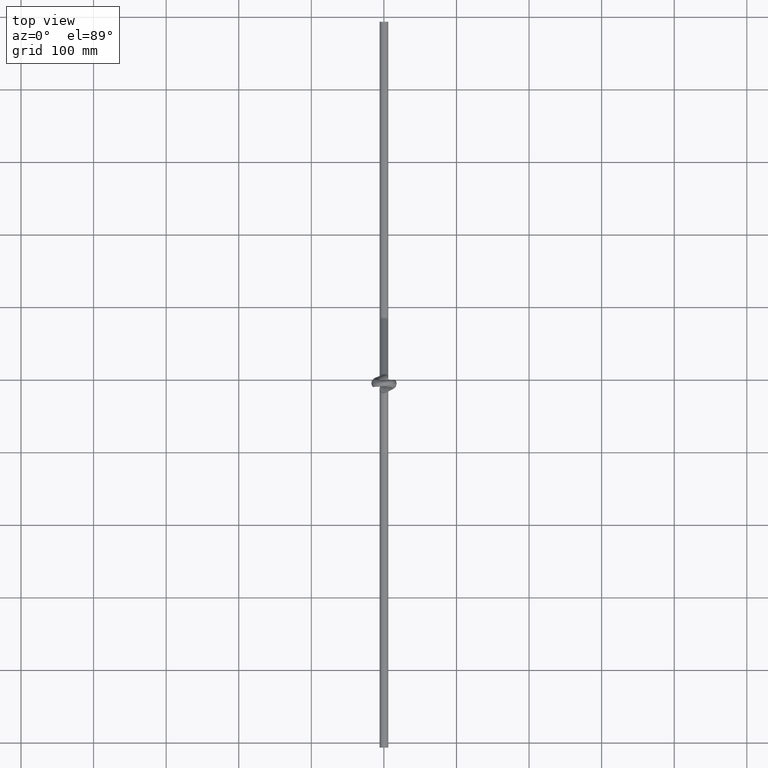
[diagram: clean part render]
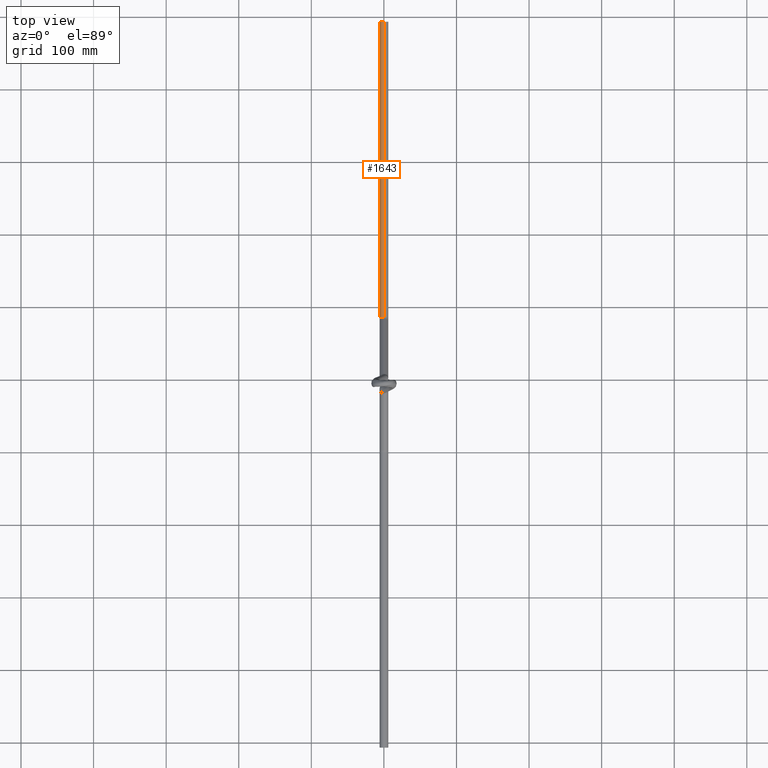
[diagram: same view with one face highlighted and labeled with its STEP entity id]
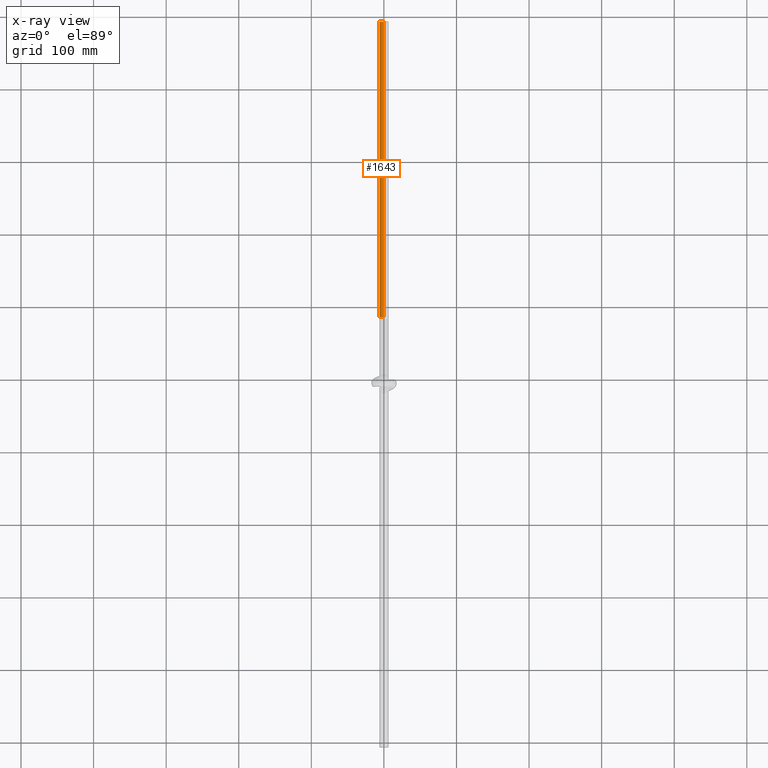
[diagram: x-ray of the same camera — body ghosted, the highlighted face saturated]
A machine part, top view. The second image highlights one B-rep face of the part: STEP entity #1643.
The next image is the same camera in x-ray: the body ghosted, the highlighted face saturated — about 0% of this face is hidden behind the body in this view.
In plain terms, the highlighted cylindrical surface (edge-blend (fillet) strip) has radius 6 mm, axis along (-0, 1, 0).
Its self-contained STEP definition (entity closure, byte-faithful):
#175 = VECTOR ( 'NONE', #689, 1000.000000000000000 ) ;
#689 = DIRECTION ( 'NONE',  ( -0.0000000000000000000, 1.000000000000000000, 1.364650601035499000E-016 ) ) ;
#823 = CARTESIAN_POINT ( 'NONE',  ( 7.347880794884167100E-016, 86.72077615225553900, -77.25000000000007100 ) ) ;
#854 = CARTESIAN_POINT ( 'NONE',  ( 0.0000000000000000000, 493.5000000000000000, -65.25000000000000000 ) ) ;
#1015 = CYLINDRICAL_SURFACE ( 'NONE', #5540, 6.000000000000005300 ) ;
#1219 = LINE ( 'NONE', #3043, #4344 ) ;
#1460 = VERTEX_POINT ( 'NONE', #3354 ) ;
#1643 = ADVANCED_FACE ( 'NONE', ( #7450 ), #1015, .T. ) ;
#2607 = VERTEX_POINT ( 'NONE', #823 ) ;
#2627 = CARTESIAN_POINT ( 'NONE',  ( 0.0000000000000000000, 493.5000000000000000, -71.25000000000001400 ) ) ;
#2630 = CIRCLE ( 'NONE', #7392, 6.000000000000005300 ) ;
#2635 = ORIENTED_EDGE ( 'NONE', *, *, #5714, .F. ) ;
#3043 = CARTESIAN_POINT ( 'NONE',  ( 7.347880794884129600E-016, 86.72077615225553900, -77.25000000000007100 ) ) ;
#3069 = ORIENTED_EDGE ( 'NONE', *, *, #7495, .T. ) ;
#3262 = DIRECTION ( 'NONE',  ( 0.0000000000000000000, 0.0000000000000000000, 1.000000000000000000 ) ) ;
#3354 = CARTESIAN_POINT ( 'NONE',  ( 0.0000000000000000000, 86.72077615225553900, -65.25000000000005700 ) ) ;
#3623 = AXIS2_PLACEMENT_3D ( 'NONE', #7187, #3627, #7743 ) ;
#3627 = DIRECTION ( 'NONE',  ( 0.0000000000000000000, 1.000000000000000000, 0.0000000000000000000 ) ) ;
#3717 = VERTEX_POINT ( 'NONE', #6648 ) ;
#3809 = CARTESIAN_POINT ( 'NONE',  ( 0.0000000000000000000, 86.72077615225553900, -65.25000000000005700 ) ) ;
#4292 = EDGE_CURVE ( 'NONE', #2607, #3717, #1219, .T. ) ;
#4344 = VECTOR ( 'NONE', #6108, 1000.000000000000000 ) ;
#4832 = ORIENTED_EDGE ( 'NONE', *, *, #7842, .T. ) ;
#5540 = AXIS2_PLACEMENT_3D ( 'NONE', #7585, #7568, #7556 ) ;
#5714 = EDGE_CURVE ( 'NONE', #3717, #5846, #2630, .T. ) ;
#5846 = VERTEX_POINT ( 'NONE', #854 ) ;
#6108 = DIRECTION ( 'NONE',  ( -0.0000000000000000000, 1.000000000000000000, 1.364650601035499000E-016 ) ) ;
#6396 = ORIENTED_EDGE ( 'NONE', *, *, #4292, .F. ) ;
#6648 = CARTESIAN_POINT ( 'NONE',  ( 7.347880794884134500E-016, 493.5000000000000000, -77.25000000000001400 ) ) ;
#6734 = LINE ( 'NONE', #3809, #175 ) ;
#6884 = DIRECTION ( 'NONE',  ( 0.0000000000000000000, 1.000000000000000000, 0.0000000000000000000 ) ) ;
#7076 = EDGE_LOOP ( 'NONE', ( #6396, #4832, #3069, #2635 ) ) ;
#7187 = CARTESIAN_POINT ( 'NONE',  ( 0.0000000000000000000, 86.72077615225553900, -71.25000000000005700 ) ) ;
#7303 = CIRCLE ( 'NONE', #3623, 6.000000000000005300 ) ;
#7392 = AXIS2_PLACEMENT_3D ( 'NONE', #2627, #6884, #3262 ) ;
#7450 = FACE_OUTER_BOUND ( 'NONE', #7076, .T. ) ;
#7495 = EDGE_CURVE ( 'NONE', #1460, #5846, #6734, .T. ) ;
#7556 = DIRECTION ( 'NONE',  ( 0.0000000000000000000, 0.0000000000000000000, 1.000000000000000000 ) ) ;
#7568 = DIRECTION ( 'NONE',  ( -0.0000000000000000000, 1.000000000000000000, 1.364650601035499000E-016 ) ) ;
#7585 = CARTESIAN_POINT ( 'NONE',  ( 0.0000000000000000000, 86.72077615225553900, -71.25000000000005700 ) ) ;
#7743 = DIRECTION ( 'NONE',  ( 0.0000000000000000000, 0.0000000000000000000, 1.000000000000000000 ) ) ;
#7842 = EDGE_CURVE ( 'NONE', #2607, #1460, #7303, .T. ) ;